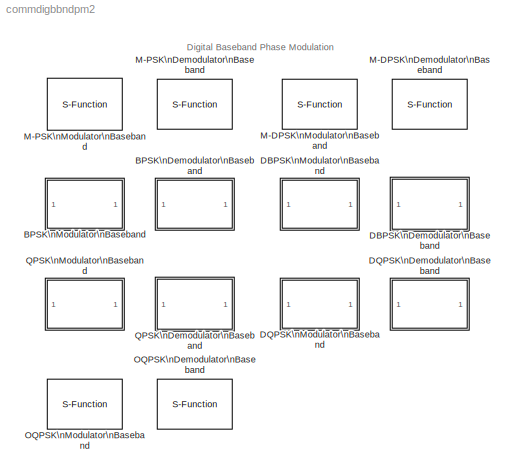
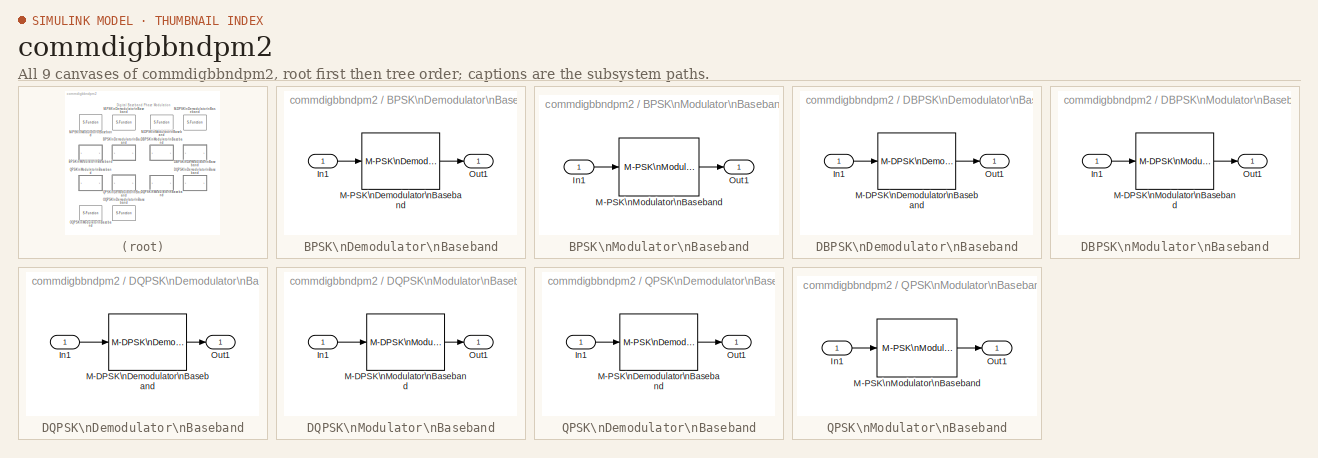
[diagram: thumbnail index - all 9 canvases of the model, root first then tree order]
MODEL commdigbbndpm2
KIND library
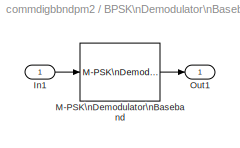
BLOCK [SubSystem] BPSK\nDemodulator\nBaseband
  MaskCallbackString = |
  MaskDescription = Demodulate the input signal using the binary phase shift keying method.\n\nFor sample-based input, the input must be a scalar. For frame-based input, the input must be a column vector.\n\nIn case of frame-based input, the width of the input frame represents the product of the number of symbols and the Samples per symbol value.\n\nIn case of sample-based input, the sample time of the input is the s...<+53ch>
  MaskDisplay = plot(0,0,100,100,[5+1.5*[[0:.8:10] [10:1.6:20] [20:.8:30]] 50 50 50 50+15*[0 1 1 2 2 3]],[85+10*[sin([0:.8:10]*pi*2/5) sin([10:1.6:20]*pi/5) sin([20:.8:30]*pi*2/5)] 85 99 75 85+8*[1 1 -1 -1 1 1]]);\ndisp('BPSK')
  MaskEnableString = on,on
  MaskHelp = helpview(commbhelp)
  MaskIconFrame = on
  MaskIconOpaque = on
  MaskIconRotate = none
  MaskIconUnits = autoscale
  MaskPromptString = Phase offset (rad):|Samples per symbol:
  MaskStyleString = edit,edit
  MaskTabNameString = ,
  MaskToolTipString = on,on
  MaskTunableValueString = on,on
  MaskType = BPSK Demodulator Baseband
  MaskValueString = 0|1
  MaskVarAliasString = ,
  MaskVariables = Ph=@1;numSamp=@2;
  MaskVisibilityString = on,on
  MinAlgLoopOccurrences = off
  Ports = [1, 1]
  PropExecContextAcrossSSBoundary = on
  RTWSystemCode = Auto
  TreatAsAtomicUnit = off
BLOCK [Inport] BPSK\nDemodulator\nBaseband/In1
  IconDisplay = Port number
  LatchInput = off
BLOCK [Reference] BPSK\nDemodulator\nBaseband/M-PSK\nDemodulator\nBaseband  REF=commdigbbndpm2/M-PSK\nDemodulator\nBaseband
  Dec = Binary
  M = 2
  OutType = Integer
  Ph = Ph
  Ports = [1, 1]
  SourceBlock = commdigbbndpm2/M-PSK\nDemodulator\nBaseband
  SourceType = M-PSK Demodulator Baseband
  numSamp = numSamp
BLOCK [Outport] BPSK\nDemodulator\nBaseband/Out1
  BusOutputAsStruct = off
  IconDisplay = Port number
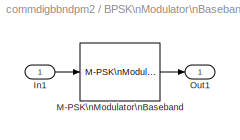
BLOCK [SubSystem] BPSK\nModulator\nBaseband
  MaskCallbackString = |
  MaskDescription = Modulate the input signal using the binary phase shift keying method. \n\nFor sample-based input, the input must be a scalar. For frame-based input, the input must be a column vector.\n\nIn case of frame-based input, the width of the output frame equals the product of the number of symbols and the Samples per symbol value.\n\nIn case of sample-based input, the output sample time equals the symbol ...<+47ch>
  MaskDisplay = plot(0,0,100,100,[5+15*[0 1 1 2 2 3] 50 50 50 50+1.5*[[0:.8:10] [10:1.6:20] [20:.8:30]]],[85+8*[1 1 -1 -1 1 1] 85 99 75 85+10*[sin([0:.8:10]*pi*2/5) sin([10:1.6:20]*pi/5) sin([20:.8:30]*pi*2/5)]]);\ndisp('BPSK')
  MaskEnableString = on,on
  MaskHelp = helpview(commbhelp)
  MaskIconFrame = on
  MaskIconOpaque = on
  MaskIconRotate = none
  MaskIconUnits = autoscale
  MaskPromptString = Phase offset (rad):|Samples per symbol:
  MaskStyleString = edit,edit
  MaskTabNameString = ,
  MaskToolTipString = on,on
  MaskTunableValueString = on,on
  MaskType = BPSK Modulator Baseband
  MaskValueString = 0|1
  MaskVarAliasString = ,
  MaskVariables = Ph=@1;numSamp=@2;
  MaskVisibilityString = on,on
  MinAlgLoopOccurrences = off
  Ports = [1, 1]
  PropExecContextAcrossSSBoundary = on
  RTWSystemCode = Auto
  TreatAsAtomicUnit = off
BLOCK [Inport] BPSK\nModulator\nBaseband/In1
  IconDisplay = Port number
  LatchInput = off
BLOCK [Reference] BPSK\nModulator\nBaseband/M-PSK\nModulator\nBaseband  REF=commdigbbndpm2/M-PSK\nModulator\nBaseband
  Enc = Binary
  InType = Integer
  M = 2
  Ph = Ph
  Ports = [1, 1]
  SourceBlock = commdigbbndpm2/M-PSK\nModulator\nBaseband
  SourceType = M-PSK Modulator Baseband
  numSamp = numSamp
BLOCK [Outport] BPSK\nModulator\nBaseband/Out1
  BusOutputAsStruct = off
  IconDisplay = Port number
BLOCK [SubSystem] DBPSK\nDemodulator\nBaseband
  MaskCallbackString = |
  MaskDescription = Demodulate the input signal using the differential binary phase shift keying method.\n\nFor sample-based input, the input must be a scalar. For frame-based input, the input must be a column vector.\n\nIn case of frame-based input, the width of the input frame represents the product of the number of symbols and the Samples per symbol value.\n\nIn case of sample-based input, the sample time of the i...<+66ch>
  MaskDisplay = plot(0,0,100,100,[5+1.5*[[0:.8:10] [10:1.6:20] [20:.8:30]] 50 50 50 50+15*[0 1 1 2 2 3]],[85+10*[sin([0:.8:10]*pi*2/5) sin([10:1.6:20]*pi/5) sin([20:.8:30]*pi*2/5)] 85 99 75 85+8*[1 1 -1 -1 1 1]]);\ndisp('DBPSK')
  MaskEnableString = on,on
  MaskHelp = helpview(commbhelp)
  MaskIconFrame = on
  MaskIconOpaque = on
  MaskIconRotate = none
  MaskIconUnits = autoscale
  MaskPromptString = Phase offset (rad):|Samples per symbol:
  MaskStyleString = edit,edit
  MaskTabNameString = ,
  MaskToolTipString = on,on
  MaskTunableValueString = on,on
  MaskType = DBPSK Demodulator Baseband
  MaskValueString = 0|1
  MaskVarAliasString = ,
  MaskVariables = Ph=@1;numSamp=@2;
  MaskVisibilityString = on,on
  MinAlgLoopOccurrences = off
  Ports = [1, 1]
  PropExecContextAcrossSSBoundary = on
  RTWSystemCode = Auto
  TreatAsAtomicUnit = off
BLOCK [Inport] DBPSK\nDemodulator\nBaseband/In1
  IconDisplay = Port number
  LatchInput = off
BLOCK [Reference] DBPSK\nDemodulator\nBaseband/M-DPSK\nDemodulator\nBaseband  REF=commdigbbndpm2/M-DPSK\nDemodulator\nBaseband
  Dec = Binary
  M = 2
  OutType = Integer
  Ph = Ph
  Ports = [1, 1]
  SourceBlock = commdigbbndpm2/M-DPSK\nDemodulator\nBaseband
  SourceType = M-DPSK Demodulator Baseband
  numSamp = numSamp
BLOCK [Outport] DBPSK\nDemodulator\nBaseband/Out1
  BusOutputAsStruct = off
  IconDisplay = Port number
BLOCK [SubSystem] DBPSK\nModulator\nBaseband
  MaskCallbackString = |
  MaskDescription = Modulate the input signal using the differential binary phase shift keying method. \n\nFor sample-based input, the input must be a scalar. For frame-based input, the input must be a column vector.\n\nIn case of frame-based input, the width of the output frame equals the product of the number of symbols and the Samples per symbol value.\n\nIn case of sample-based input, the output sample time equal...<+60ch>
  MaskDisplay = plot(0,0,100,100,[5+15*[0 1 1 2 2 3] 50 50 50 50+1.5*[[0:.8:10] [10:1.6:20] [20:.8:30]]],[85+8*[1 1 -1 -1 1 1] 85 99 75 85+10*[sin([0:.8:10]*pi*2/5) sin([10:1.6:20]*pi/5) sin([20:.8:30]*pi*2/5)]]);\ndisp('DBPSK')
  MaskEnableString = on,on
  MaskHelp = helpview(commbhelp)
  MaskIconFrame = on
  MaskIconOpaque = on
  MaskIconRotate = none
  MaskIconUnits = autoscale
  MaskPromptString = Phase offset (rad):|Samples per symbol:
  MaskStyleString = edit,edit
  MaskTabNameString = ,
  MaskToolTipString = on,on
  MaskTunableValueString = on,on
  MaskType = DBPSK Modulator Baseband
  MaskValueString = 0|1
  MaskVarAliasString = ,
  MaskVariables = Ph=@1;numSamp=@2;
  MaskVisibilityString = on,on
  MinAlgLoopOccurrences = off
  Ports = [1, 1]
  PropExecContextAcrossSSBoundary = on
  RTWSystemCode = Auto
  TreatAsAtomicUnit = off
BLOCK [Inport] DBPSK\nModulator\nBaseband/In1
  IconDisplay = Port number
  LatchInput = off
BLOCK [Reference] DBPSK\nModulator\nBaseband/M-DPSK\nModulator\nBaseband  REF=commdigbbndpm2/M-DPSK\nModulator\nBaseband
  Enc = Binary
  InType = Integer
  M = 2
  Ph = Ph
  Ports = [1, 1]
  SourceBlock = commdigbbndpm2/M-DPSK\nModulator\nBaseband
  SourceType = M-DPSK Modulator Baseband
  numSamp = numSamp
BLOCK [Outport] DBPSK\nModulator\nBaseband/Out1
  BusOutputAsStruct = off
  IconDisplay = Port number
BLOCK [SubSystem] DQPSK\nDemodulator\nBaseband
  MaskCallbackString = commblkqpskmod(gcb,'InType');|||
  MaskDescription = Demodulate the input signal using the differential quaternary phase shift keying method.\n\nFor sample-based input, the input must be a scalar. For frame-based input, the input must be a column vector.\n\nThe output can be either bits or integers. In case of bit output, the output width is an integer multiple of two.\n\nIn case of frame-based input, the width of the input frame represents the prod...<+187ch>
  MaskDisplay = plot(0,0,100,100,[5+1.5*[[0:.8:10] [10:1.6:20] [20:.8:30]] 50 50 50 50+15*[0 1 1 2 2 3]],[85+10*[sin([0:.8:10]*pi*2/5) sin([10:1.6:20]*pi/5) sin([20:.8:30]*pi*2/5)] 85 99 75 85+8*[1 1 -1 -1 1 1]]);\ndisp('DQPSK')
  MaskEnableString = on,off,on,on
  MaskHelp = helpview(commbhelp)
  MaskIconFrame = on
  MaskIconOpaque = on
  MaskIconRotate = none
  MaskIconUnits = autoscale
  MaskInitialization = commblkdyampmdemod('M-DPSK Demodulator Baseband','update');\ncommblkqpskmod(gcb,'init');
  MaskPromptString = Output type:|Constellation ordering:|Phase offset (rad):|Samples per symbol:
  MaskSelfModifiable = on
  MaskStyleString = popup(Bit|Integer),popup(Binary|Gray),edit,edit
  MaskTabNameString = ,,,
  MaskToolTipString = on,on,on,on
  MaskTunableValueString = on,on,on,on
  MaskType = DQPSK Demodulator Baseband
  MaskValueString = Integer|Binary|pi/4|1
  MaskVarAliasString = ,,,
  MaskVariables = OutType=@1;Dec=@2;Ph=@3;numSamp=@4;
  MaskVisibilityString = on,on,on,on
  MinAlgLoopOccurrences = off
  Ports = [1, 1]
  PropExecContextAcrossSSBoundary = on
  RTWSystemCode = Auto
  TreatAsAtomicUnit = off
BLOCK [Inport] DQPSK\nDemodulator\nBaseband/In1
  IconDisplay = Port number
  LatchInput = off
BLOCK [Reference] DQPSK\nDemodulator\nBaseband/M-DPSK\nDemodulator\nBaseband  REF=commdigbbndpm2/M-DPSK\nDemodulator\nBaseband
  Dec = Binary
  M = 4
  OutType = Integer
  Ph = Ph
  Ports = [1, 1]
  SourceBlock = commdigbbndpm2/M-DPSK\nDemodulator\nBaseband
  SourceType = M-DPSK Demodulator Baseband
  numSamp = numSamp
BLOCK [Outport] DQPSK\nDemodulator\nBaseband/Out1
  BusOutputAsStruct = off
  IconDisplay = Port number
BLOCK [SubSystem] DQPSK\nModulator\nBaseband
  MaskCallbackString = commblkqpskmod(gcb,'InType');|||
  MaskDescription = Modulate the input signal using the differential quaternary phase shift keying method.\n\nThe input can be either bits or integers. In case of sample-based bit input, the input width must be two. In case of frame-based bit input, the input width must be an integer multiple of two. The bits can be either binary-mapped or Gray-mapped into symbols.\n\nFor sample-based integer input, the input must be...<+340ch>
  MaskDisplay = plot(0,0,100,100,[5+15*[0 1 1 2 2 3] 50 50 50 50+1.5*[[0:.8:10] [10:1.6:20] [20:.8:30]]],[85+8*[1 1 -1 -1 1 1] 85 99 75 85+10*[sin([0:.8:10]*pi*2/5) sin([10:1.6:20]*pi/5) sin([20:.8:30]*pi*2/5)]]);\ndisp('DQPSK')
  MaskEnableString = on,off,on,on
  MaskHelp = helpview(commbhelp)
  MaskIconFrame = on
  MaskIconOpaque = on
  MaskIconRotate = none
  MaskIconUnits = autoscale
  MaskInitialization = commblkdyampmmod('M-DPSK Modulator Baseband','update')\ncommblkqpskmod(gcb,'init');
  MaskPromptString = Input type:|Constellation ordering:|Phase offset (rad):|Samples per symbol:
  MaskSelfModifiable = on
  MaskStyleString = popup(Bit|Integer),popup(Binary|Gray),edit,edit
  MaskTabNameString = ,,,
  MaskToolTipString = on,on,on,on
  MaskTunableValueString = on,on,on,on
  MaskType = DQPSK Modulator Baseband
  MaskValueString = Integer|Binary|pi/4|1
  MaskVarAliasString = ,,,
  MaskVariables = InType=@1;Enc=@2;Ph=@3;numSamp=@4;
  MaskVisibilityString = on,on,on,on
  MinAlgLoopOccurrences = off
  Ports = [1, 1]
  PropExecContextAcrossSSBoundary = on
  RTWSystemCode = Auto
  TreatAsAtomicUnit = off
BLOCK [Inport] DQPSK\nModulator\nBaseband/In1
  IconDisplay = Port number
  LatchInput = off
BLOCK [Reference] DQPSK\nModulator\nBaseband/M-DPSK\nModulator\nBaseband  REF=commdigbbndpm2/M-DPSK\nModulator\nBaseband
  Enc = Binary
  InType = Integer
  M = 4
  Ph = Ph
  Ports = [1, 1]
  SourceBlock = commdigbbndpm2/M-DPSK\nModulator\nBaseband
  SourceType = M-DPSK Modulator Baseband
  numSamp = numSamp
BLOCK [Outport] DQPSK\nModulator\nBaseband/Out1
  BusOutputAsStruct = off
  IconDisplay = Port number
BLOCK [S-Function] M-DPSK\nDemodulator\nBaseband
  FunctionName = scomapskdemod
  MaskCallbackString = |commblkpskmod(gcb,'InType');|||
  MaskDescription = Demodulate the input signal using the differential phase shift keying method.\n\nFor sample-based input, the input must be a scalar. For frame-based input, the input must be a column vector.\n\nThe output can be either bits or integers. In case of bit output, the output width is an integer multiple of the number of bits per symbol. The symbols can be either binary-demapped or Gray-demapped into bi...<+272ch>
  MaskDisplay = plot(0,0,100,100,[5+1.5*[[0:.8:10] [10:1.6:20] [20:.8:30]] 50 50 50 50+15*[0 1 1 2 2 3]],[85+10*[sin([0:.8:10]*pi*2/5) sin([10:1.6:20]*pi/5) sin([20:.8:30]*pi*2/5)] 85 99 75 85+8*[1 1 -1 -1 1 1]]);\ndisp('M-DPSK')
  MaskEnableString = on,on,off,on,on
  MaskHelp = helpview(commbhelp)
  MaskIconFrame = on
  MaskIconOpaque = on
  MaskIconRotate = none
  MaskIconUnits = autoscale
  MaskInitialization = commblkpskmod(gcb,'init');
  MaskPromptString = M-ary number:|Output type:|Constellation ordering:|Phase offset (rad):|Samples per symbol:
  MaskSelfModifiable = on
  MaskStyleString = edit,popup(Bit|Integer),popup(Binary|Gray),edit,edit
  MaskTabNameString = ,,,,
  MaskToolTipString = on,on,on,on,on
  MaskTunableValueString = on,on,on,on,on
  MaskType = M-DPSK Demodulator Baseband
  MaskValueString = 8|Integer|Binary|pi/8|1
  MaskVarAliasString = ,,,,
  MaskVariables = M=@1;OutType=@2;Dec=@3;Ph=@4;numSamp=@5;
  MaskVisibilityString = on,on,on,on,on
  Parameters = M,OutType,Dec,1,1,1,1,Ph,numSamp,0,0,2
  Ports = [1, 1]
BLOCK [S-Function] M-DPSK\nModulator\nBaseband
  FunctionName = scomapskmod
  MaskCallbackString = |commblkpskmod(gcb,'InType');|||
  MaskDescription = Modulate the input signal using the differential phase shift keying method.\n\nThe input can be either bits or integers. In case of sample-based bit input, the input width must equal the number of bits per symbol. In case of frame-based bit input, the input width must be an integer multiple of the number of bits per symbol. The bits can be either binary-mapped or Gray-mapped into symbols.\n\nFor s...<+384ch>
  MaskDisplay = plot(0,0,100,100,[5+15*[0 1 1 2 2 3] 50 50 50 50+1.5*[[0:.8:10] [10:1.6:20] [20:.8:30]]],[85+8*[1 1 -1 -1 1 1] 85 99 75 85+10*[sin([0:.8:10]*pi*2/5) sin([10:1.6:20]*pi/5) sin([20:.8:30]*pi*2/5)]]);\ndisp('M-DPSK')
  MaskEnableString = on,on,off,on,on
  MaskHelp = helpview(commbhelp)
  MaskIconFrame = on
  MaskIconOpaque = on
  MaskIconRotate = none
  MaskIconUnits = autoscale
  MaskInitialization = commblkpskmod(gcb,'init');
  MaskPromptString = M-ary number:|Input type:|Constellation ordering:|Phase offset (rad):|Samples per symbol:
  MaskSelfModifiable = on
  MaskStyleString = edit,popup(Bit|Integer),popup(Binary|Gray),edit,edit
  MaskTabNameString = ,,,,
  MaskToolTipString = on,on,on,on,on
  MaskTunableValueString = on,on,on,on,on
  MaskType = M-DPSK Modulator Baseband
  MaskValueString = 8|Integer|Binary|pi/8|1
  MaskVarAliasString = ,,,,
  MaskVariables = M=@1;InType=@2;Enc=@3;Ph=@4;numSamp=@5;
  MaskVisibilityString = on,on,on,on,on
  Parameters = M,InType,Enc,1,1,1,1,Ph,numSamp,0,0,2
  Ports = [1, 1]
BLOCK [S-Function] M-PSK\nDemodulator\nBaseband
  FunctionName = scomapskdemod
  MaskCallbackString = |commblkpskmod(gcb,'InType');|||
  MaskDescription = Demodulate the input signal using the phase shift keying method.\n\nFor sample-based input, the input must be a scalar. For frame-based input, the input must be a column vector.\n\nThe output can be either bits or integers. In case of bit output, the output width is an integer multiple of the number of bits per symbol. The symbols can be either binary-demapped or Gray-demapped into bits.\n\nIn cas...<+259ch>
  MaskDisplay = plot(0,0,100,100,[5+1.5*[[0:.8:10] [10:1.6:20] [20:.8:30]] 50 50 50 50+15*[0 1 1 2 2 3]],[85+10*[sin([0:.8:10]*pi*2/5) sin([10:1.6:20]*pi/5) sin([20:.8:30]*pi*2/5)] 85 99 75 85+8*[1 1 -1 -1 1 1]]);\ndisp('M-PSK')
  MaskEnableString = on,on,off,on,on
  MaskHelp = helpview(commbhelp)
  MaskIconFrame = on
  MaskIconOpaque = on
  MaskIconRotate = none
  MaskIconUnits = autoscale
  MaskInitialization = commblkpskmod(gcb,'init');
  MaskPromptString = M-ary number:|Output type:|Constellation ordering:|Phase offset (rad):|Samples per symbol:
  MaskSelfModifiable = on
  MaskStyleString = edit,popup(Bit|Integer),popup(Binary|Gray),edit,edit
  MaskTabNameString = ,,,,
  MaskToolTipString = on,on,on,on,on
  MaskTunableValueString = on,on,on,on,on
  MaskType = M-PSK Demodulator Baseband
  MaskValueString = 8|Integer|Binary|pi/8|1
  MaskVarAliasString = ,,,,
  MaskVariables = M=@1;OutType=@2;Dec=@3;Ph=@4;numSamp=@5;
  MaskVisibilityString = on,on,on,on,on
  Parameters = M,OutType,Dec,1,1,1,1,Ph,numSamp,0,0,1
  Ports = [1, 1]
BLOCK [S-Function] M-PSK\nModulator\nBaseband
  FunctionName = scomapskmod
  MaskCallbackString = |commblkpskmod(gcb,'InType');|||
  MaskDescription = Modulate the input signal using the phase shift keying method. \n\nThe input can be either bits or integers. In case of sample-based bit input, the input width must equal the number of bits per symbol. In case of frame-based bit input, the input width must be an integer multiple of the number of bits per symbol. The bits can be either binary-mapped or Gray-mapped into symbols.\n\nFor sample-based ...<+372ch>
  MaskDisplay = plot(0,0,100,100,[5+15*[0 1 1 2 2 3] 50 50 50 50+1.5*[[0:.8:10] [10:1.6:20] [20:.8:30]]],[85+8*[1 1 -1 -1 1 1] 85 99 75 85+10*[sin([0:.8:10]*pi*2/5) sin([10:1.6:20]*pi/5) sin([20:.8:30]*pi*2/5)]]);\ndisp('M-PSK')
  MaskEnableString = on,on,off,on,on
  MaskHelp = helpview(commbhelp)
  MaskIconFrame = on
  MaskIconOpaque = on
  MaskIconRotate = none
  MaskIconUnits = autoscale
  MaskInitialization = commblkpskmod(gcb,'init');
  MaskPromptString = M-ary number:|Input type:|Constellation ordering:|Phase offset (rad):|Samples per symbol:
  MaskSelfModifiable = on
  MaskStyleString = edit,popup(Bit|Integer),popup(Binary|Gray),edit,edit
  MaskTabNameString = ,,,,
  MaskToolTipString = on,on,on,on,on
  MaskTunableValueString = on,on,on,on,on
  MaskType = M-PSK Modulator Baseband
  MaskValueString = 8|Integer|Binary|pi/8|1
  MaskVarAliasString = ,,,,
  MaskVariables = M=@1;InType=@2;Enc=@3;Ph=@4;numSamp=@5;
  MaskVisibilityString = on,on,on,on,on
  Parameters = M,InType,Enc,1,1,1,1,Ph,numSamp,0,0,1
  Ports = [1, 1]
BLOCK [S-Function] OQPSK\nDemodulator\nBaseband
  FunctionName = scomapskdemod
  MaskCallbackString = ||
  MaskDescription = Demodulate the input signal using the offset quadrature phase shift keying method.\n\nFor sample-based input, the input must be a scalar. For frame-based input, the input must be a column vector.\n\nThe output can be either bits or integers. In case of bit output, the output width is an integer multiple of two.\n\nIn case of frame-based input, the width of the input frame represents the product of...<+195ch>
  MaskDisplay = plot(0,0,100,100,[5+1.5*[[0:.8:10] [10:1.6:20] [20:.8:30]] 50 50 50 50+15*[0 1 1 2 2 3]],[85+10*[sin([0:.8:10]*pi*2/5) sin([10:1.6:20]*pi/5) sin([20:.8:30]*pi*2/5)] 85 99 75 85+8*[1 1 -1 -1 1 1]]);\ndisp('OQPSK')
  MaskEnableString = on,on,on
  MaskHelp = helpview(commbhelp)
  MaskIconFrame = on
  MaskIconOpaque = on
  MaskIconRotate = none
  MaskIconUnits = autoscale
  MaskPromptString = Output type:|Phase offset (rad):|Oversampling factor:
  MaskStyleString = popup(Bit|Integer),edit,edit
  MaskTabNameString = ,,
  MaskToolTipString = on,on,on
  MaskTunableValueString = on,on,on
  MaskType = OQPSK Demodulator Baseband
  MaskValueString = Integer|0|1
  MaskVarAliasString = ,,
  MaskVariables = OutType=@1;Ph=@2;numSamp=@3;
  MaskVisibilityString = on,on,on
  Parameters = 4,OutType,1,1,1,1,1,Ph,numSamp,0,0,6
  Ports = [1, 1]
BLOCK [S-Function] OQPSK\nModulator\nBaseband
  FunctionName = scomapskmod
  MaskCallbackString = ||
  MaskDescription = Modulate the input signal using the offset quadrature phase shift keying method. \n\nThe input can be either bits or integers. In case of sample-based bit input, the input width must be two. In case of frame-based bit inputs, the input width must be an integer multiple of two.\n\nFor sample-based integer input, the input must be a scalar. For frame-based integer input, the input must be a column v...<+275ch>
  MaskDisplay = plot(0,0,100,100,[5+15*[0 1 1 2 2 3] 50 50 50 50+1.5*[[0:.8:10] [10:1.6:20] [20:.8:30]]],[85+8*[1 1 -1 -1 1 1] 85 99 75 85+10*[sin([0:.8:10]*pi*2/5) sin([10:1.6:20]*pi/5) sin([20:.8:30]*pi*2/5)]]);\ndisp('OQPSK')
  MaskEnableString = on,on,on
  MaskHelp = helpview(commbhelp)
  MaskIconFrame = on
  MaskIconOpaque = on
  MaskIconRotate = none
  MaskIconUnits = autoscale
  MaskPromptString = Input type:|Phase offset (rad):|Oversampling factor:
  MaskStyleString = popup(Bit|Integer),edit,edit
  MaskTabNameString = ,,
  MaskToolTipString = on,on,on
  MaskTunableValueString = on,on,on
  MaskType = OQPSK Modulator Baseband
  MaskValueString = Integer|0|1
  MaskVarAliasString = ,,
  MaskVariables = InType=@1;Ph=@2;numSamp=@3;
  MaskVisibilityString = on,on,on
  Parameters = 4,InType,1,1,1,1,1,Ph,numSamp,0,0,6
  Ports = [1, 1]
BLOCK [SubSystem] QPSK\nDemodulator\nBaseband
  MaskCallbackString = commblkqpskmod(gcb,'InType');|||
  MaskDescription = Demodulate the input signal using the quaternary phase shift keying method.\n\nFor sample-based input, the input must be a scalar. For frame-based input, the input must be a column vector.\n\nThe output can be either bits or integers. In case of bit output, the output width is an integer multiple of two.\n\nIn case of frame-based input, the width of the input frame represents the product of the nu...<+174ch>
  MaskDisplay = plot(0,0,100,100,[5+1.5*[[0:.8:10] [10:1.6:20] [20:.8:30]] 50 50 50 50+15*[0 1 1 2 2 3]],[85+10*[sin([0:.8:10]*pi*2/5) sin([10:1.6:20]*pi/5) sin([20:.8:30]*pi*2/5)] 85 99 75 85+8*[1 1 -1 -1 1 1]]);\ndisp('QPSK')
  MaskEnableString = on,off,on,on
  MaskHelp = helpview(commbhelp)
  MaskIconFrame = on
  MaskIconOpaque = on
  MaskIconRotate = none
  MaskIconUnits = autoscale
  MaskInitialization = commblkdyampmdemod('M-PSK Demodulator Baseband','update');\ncommblkqpskmod(gcb,'init');\n
  MaskPromptString = Output type:|Constellation ordering:|Phase offset (rad):|Samples per symbol:
  MaskSelfModifiable = on
  MaskStyleString = popup(Bit|Integer),popup(Binary|Gray),edit,edit
  MaskTabNameString = ,,,
  MaskToolTipString = on,on,on,on
  MaskTunableValueString = on,on,on,on
  MaskType = QPSK Demodulator Baseband
  MaskValueString = Integer|Binary|pi/4|1
  MaskVarAliasString = ,,,
  MaskVariables = OutType=@1;Dec=@2;Ph=@3;numSamp=@4;
  MaskVisibilityString = on,on,on,on
  MinAlgLoopOccurrences = off
  Ports = [1, 1]
  PropExecContextAcrossSSBoundary = on
  RTWSystemCode = Auto
  TreatAsAtomicUnit = off
BLOCK [Inport] QPSK\nDemodulator\nBaseband/In1
  IconDisplay = Port number
  LatchInput = off
BLOCK [Reference] QPSK\nDemodulator\nBaseband/M-PSK\nDemodulator\nBaseband  REF=commdigbbndpm2/M-PSK\nDemodulator\nBaseband
  Dec = Binary
  M = 4
  OutType = Integer
  Ph = Ph
  Ports = [1, 1]
  SourceBlock = commdigbbndpm2/M-PSK\nDemodulator\nBaseband
  SourceType = M-PSK Demodulator Baseband
  numSamp = numSamp
BLOCK [Outport] QPSK\nDemodulator\nBaseband/Out1
  BusOutputAsStruct = off
  IconDisplay = Port number
BLOCK [SubSystem] QPSK\nModulator\nBaseband
  MaskCallbackString = commblkqpskmod(gcb,'InType');|||
  MaskDescription = Modulate the input signal using the quaternary phase shift keying method. \n\nThe input can be either bits or integers. In case of sample-based bit input, the input width must be two. In case of frame-based bit input, the input width must be an integer multiple of two. The bits can be either binary-mapped or Gray-mapped into symbols.\n\nFor sample-based integer input, the input must be a scalar. F...<+328ch>
  MaskDisplay = plot(0,0,100,100,[5+15*[0 1 1 2 2 3] 50 50 50 50+1.5*[[0:.8:10] [10:1.6:20] [20:.8:30]]],[85+8*[1 1 -1 -1 1 1] 85 99 75 85+10*[sin([0:.8:10]*pi*2/5) sin([10:1.6:20]*pi/5) sin([20:.8:30]*pi*2/5)]]);\ndisp('QPSK')
  MaskEnableString = on,off,on,on
  MaskHelp = helpview(commbhelp)
  MaskIconFrame = on
  MaskIconOpaque = on
  MaskIconRotate = none
  MaskIconUnits = autoscale
  MaskInitialization = commblkqpskmod(gcb,'init');\ncommblkdyampmmod('M-PSK Modulator Baseband','update')
  MaskPromptString = Input type:|Constellation ordering:|Phase offset (rad):|Samples per symbol:
  MaskSelfModifiable = on
  MaskStyleString = popup(Bit|Integer),popup(Binary|Gray),edit,edit
  MaskTabNameString = ,,,
  MaskToolTipString = on,on,on,on
  MaskTunableValueString = on,on,on,on
  MaskType = QPSK Modulator Baseband
  MaskValueString = Integer|Binary|pi/4|1
  MaskVarAliasString = ,,,
  MaskVariables = InType=@1;Enc=@2;Ph=@3;numSamp=@4;
  MaskVisibilityString = on,on,on,on
  MinAlgLoopOccurrences = off
  Ports = [1, 1]
  PropExecContextAcrossSSBoundary = on
  RTWSystemCode = Auto
  TreatAsAtomicUnit = off
BLOCK [Inport] QPSK\nModulator\nBaseband/In1
  IconDisplay = Port number
  LatchInput = off
BLOCK [Reference] QPSK\nModulator\nBaseband/M-PSK\nModulator\nBaseband  REF=commdigbbndpm2/M-PSK\nModulator\nBaseband
  Enc = Binary
  InType = Integer
  M = 4
  Ph = Ph
  Ports = [1, 1]
  SourceBlock = commdigbbndpm2/M-PSK\nModulator\nBaseband
  SourceType = M-PSK Modulator Baseband
  numSamp = numSamp
BLOCK [Outport] QPSK\nModulator\nBaseband/Out1
  BusOutputAsStruct = off
  IconDisplay = Port number
ANNOTATION (root): Digital Baseband Phase Modulation
LINE BPSK\nDemodulator\nBaseband/In1:1 -> BPSK\nDemodulator\nBaseband/M-PSK\nDemodulator\nBaseband:1
LINE BPSK\nDemodulator\nBaseband/M-PSK\nDemodulator\nBaseband:1 -> BPSK\nDemodulator\nBaseband/Out1:1
LINE BPSK\nModulator\nBaseband/In1:1 -> BPSK\nModulator\nBaseband/M-PSK\nModulator\nBaseband:1
LINE BPSK\nModulator\nBaseband/M-PSK\nModulator\nBaseband:1 -> BPSK\nModulator\nBaseband/Out1:1
LINE DBPSK\nDemodulator\nBaseband/In1:1 -> DBPSK\nDemodulator\nBaseband/M-DPSK\nDemodulator\nBaseband:1
LINE DBPSK\nDemodulator\nBaseband/M-DPSK\nDemodulator\nBaseband:1 -> DBPSK\nDemodulator\nBaseband/Out1:1
LINE DBPSK\nModulator\nBaseband/In1:1 -> DBPSK\nModulator\nBaseband/M-DPSK\nModulator\nBaseband:1
LINE DBPSK\nModulator\nBaseband/M-DPSK\nModulator\nBaseband:1 -> DBPSK\nModulator\nBaseband/Out1:1
LINE DQPSK\nDemodulator\nBaseband/In1:1 -> DQPSK\nDemodulator\nBaseband/M-DPSK\nDemodulator\nBaseband:1
LINE DQPSK\nDemodulator\nBaseband/M-DPSK\nDemodulator\nBaseband:1 -> DQPSK\nDemodulator\nBaseband/Out1:1
LINE DQPSK\nModulator\nBaseband/In1:1 -> DQPSK\nModulator\nBaseband/M-DPSK\nModulator\nBaseband:1
LINE DQPSK\nModulator\nBaseband/M-DPSK\nModulator\nBaseband:1 -> DQPSK\nModulator\nBaseband/Out1:1
LINE QPSK\nDemodulator\nBaseband/In1:1 -> QPSK\nDemodulator\nBaseband/M-PSK\nDemodulator\nBaseband:1
LINE QPSK\nDemodulator\nBaseband/M-PSK\nDemodulator\nBaseband:1 -> QPSK\nDemodulator\nBaseband/Out1:1
LINE QPSK\nModulator\nBaseband/In1:1 -> QPSK\nModulator\nBaseband/M-PSK\nModulator\nBaseband:1
LINE QPSK\nModulator\nBaseband/M-PSK\nModulator\nBaseband:1 -> QPSK\nModulator\nBaseband/Out1:1
